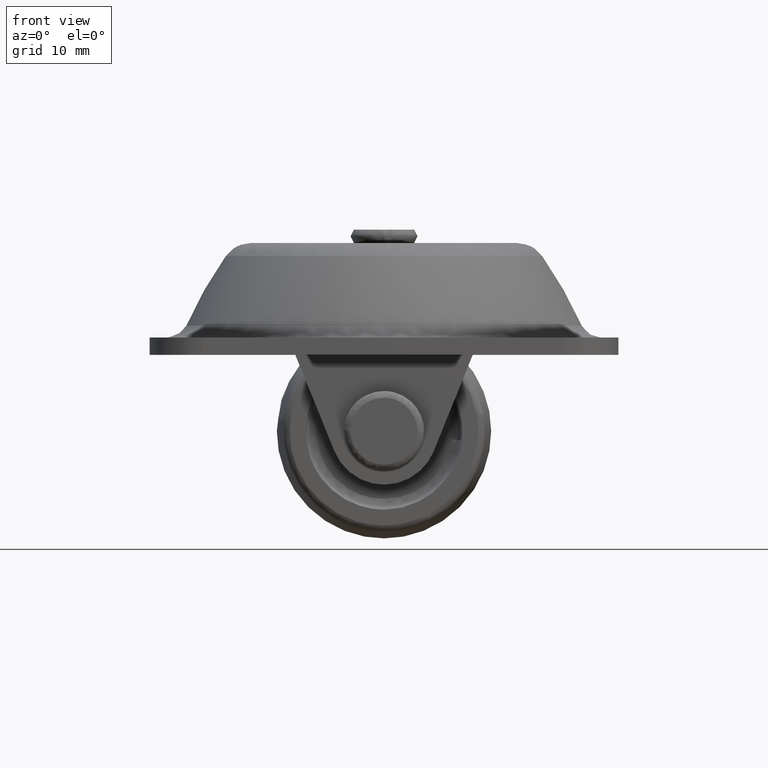
[diagram: clean part render]
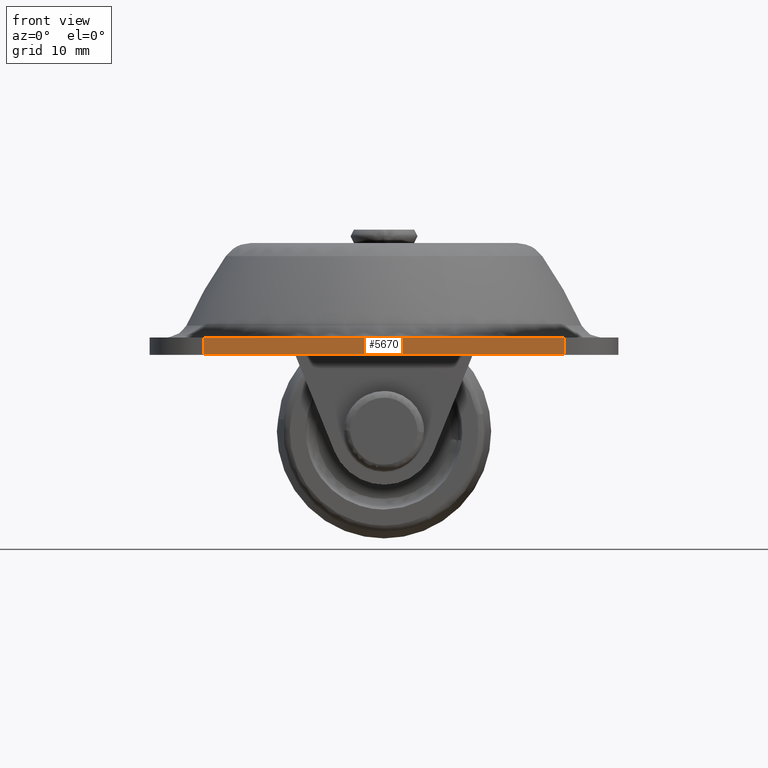
[diagram: same view with one face highlighted and labeled with its STEP entity id]
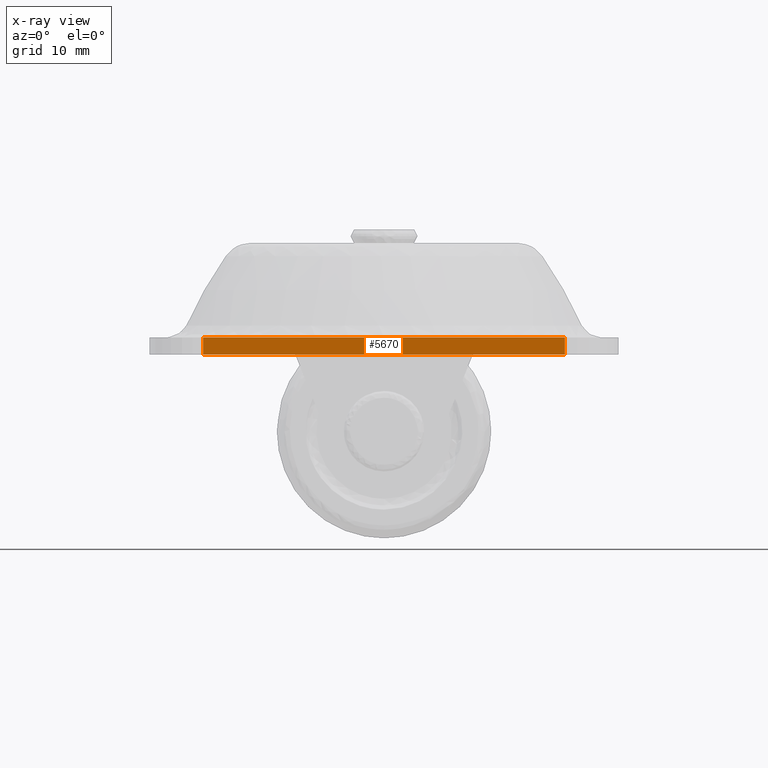
[diagram: x-ray of the same camera — body ghosted, the highlighted face saturated]
A machine part, front view. The second image highlights one B-rep face of the part: STEP entity #5670.
The next image is the same camera in x-ray: the body ghosted, the highlighted face saturated — about 0% of this face is hidden behind the body in this view.
In plain terms, the highlighted face is a freeform B-spline surface patch.
Its self-contained STEP definition (entity closure, byte-faithful):
#5600=CARTESIAN_POINT('',(26.999999000000098,-35.000003999999997,14.000000000000121));
#5601=VERTEX_POINT('',#5600);
#5617=CARTESIAN_POINT('',(26.999999000000098,-35.000003999999997,11.400001000000040));
#5618=VERTEX_POINT('',#5617);
#5619=CARTESIAN_POINT('',(26.999999000000098,-35.000003999999997,11.400001000000040));
#5620=CARTESIAN_POINT('',(26.999999000000098,-35.000003999999997,14.000000000000121));
#5621=QUASI_UNIFORM_CURVE('',1,(#5619,#5620),.UNSPECIFIED.,.F.,.U.);
#5622=EDGE_CURVE('',#5618,#5601,#5621,.T.);
#5643=CARTESIAN_POINT('',(-29.697299866173690,-35.000003999999997,14.129869963588870));
#5644=CARTESIAN_POINT('',(-29.697299866173690,-35.000003999999997,11.270130594741049));
#5645=CARTESIAN_POINT('',(29.697296248640729,-35.000003999999997,14.129869963588870));
#5646=CARTESIAN_POINT('',(29.697296248640729,-35.000003999999997,11.270130594741049));
#5647=B_SPLINE_SURFACE_WITH_KNOTS('',1,1,((#5643,#5645),(#5644,#5646)),.UNSPECIFIED.,.F.,.F.,.U.,(2,2),(2,2),(0.0,2.859739368847823),(0.0,59.394596114814433),.UNSPECIFIED.);
#5648=CARTESIAN_POINT('',(-26.999999720747400,-35.000004000000047,14.000000000000121));
#5649=VERTEX_POINT('',#5648);
#5650=CARTESIAN_POINT('',(-26.999999720747400,-35.000004000000047,14.000000000000121));
#5651=CARTESIAN_POINT('',(26.999999000000098,-35.000003999999997,14.000000000000121));
#5652=QUASI_UNIFORM_CURVE('',1,(#5650,#5651),.UNSPECIFIED.,.F.,.U.);
#5653=EDGE_CURVE('',#5649,#5601,#5652,.T.);
#5654=ORIENTED_EDGE('',*,*,#5653,.F.);
#5655=CARTESIAN_POINT('',(-26.999999720747400,-35.000004000000047,11.400001000000040));
#5656=VERTEX_POINT('',#5655);
#5657=CARTESIAN_POINT('',(-26.999999720747400,-35.000004000000047,11.400001000000040));
#5658=CARTESIAN_POINT('',(-26.999999720747400,-35.000004000000047,14.000000000000121));
#5659=QUASI_UNIFORM_CURVE('',1,(#5657,#5658),.UNSPECIFIED.,.F.,.U.);
#5660=EDGE_CURVE('',#5656,#5649,#5659,.T.);
#5661=ORIENTED_EDGE('',*,*,#5660,.F.);
#5662=CARTESIAN_POINT('',(-26.999999720747400,-35.000004000000047,11.400001000000040));
#5663=CARTESIAN_POINT('',(26.999999000000098,-35.000003999999997,11.400001000000040));
#5664=QUASI_UNIFORM_CURVE('',1,(#5662,#5663),.UNSPECIFIED.,.F.,.U.);
#5665=EDGE_CURVE('',#5656,#5618,#5664,.T.);
#5666=ORIENTED_EDGE('',*,*,#5665,.T.);
#5667=ORIENTED_EDGE('',*,*,#5622,.T.);
#5668=EDGE_LOOP('',(#5654,#5661,#5666,#5667));
#5669=FACE_OUTER_BOUND('',#5668,.T.);
#5670=ADVANCED_FACE('',(#5669),#5647,.T.);